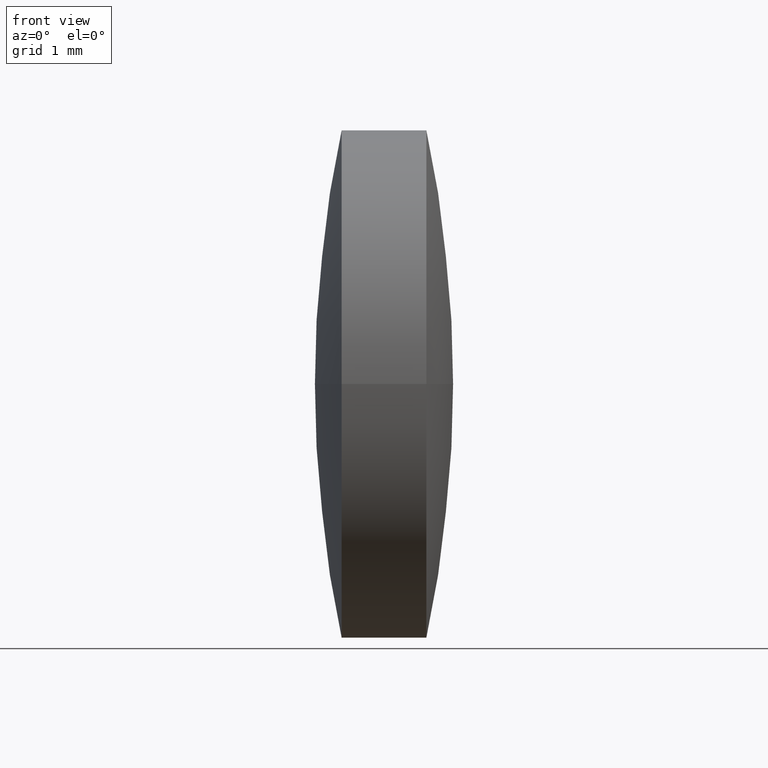
[diagram: clean part render]
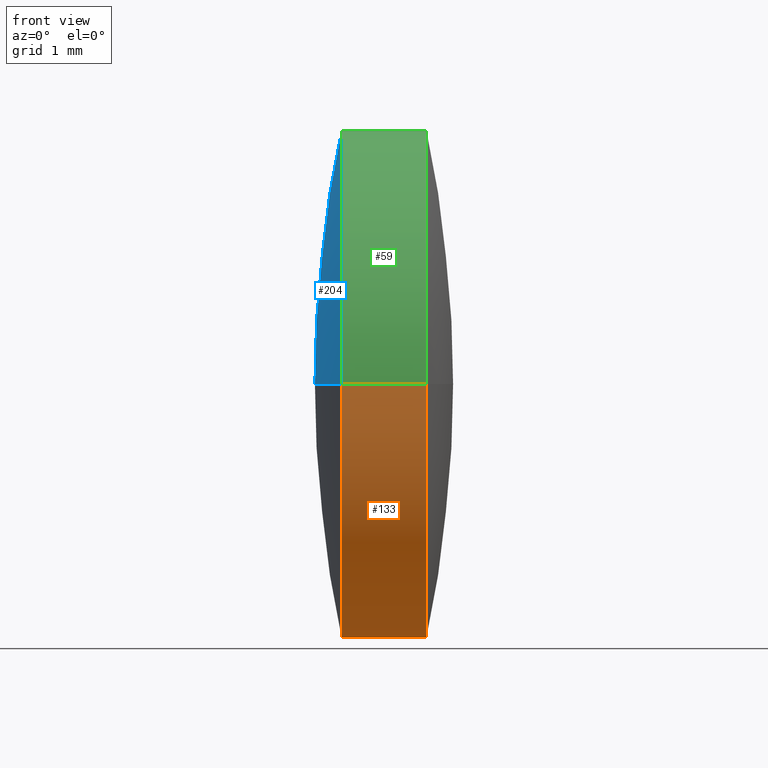
[diagram: same view with three faces highlighted in distinct colors, each labeled with its STEP entity id]
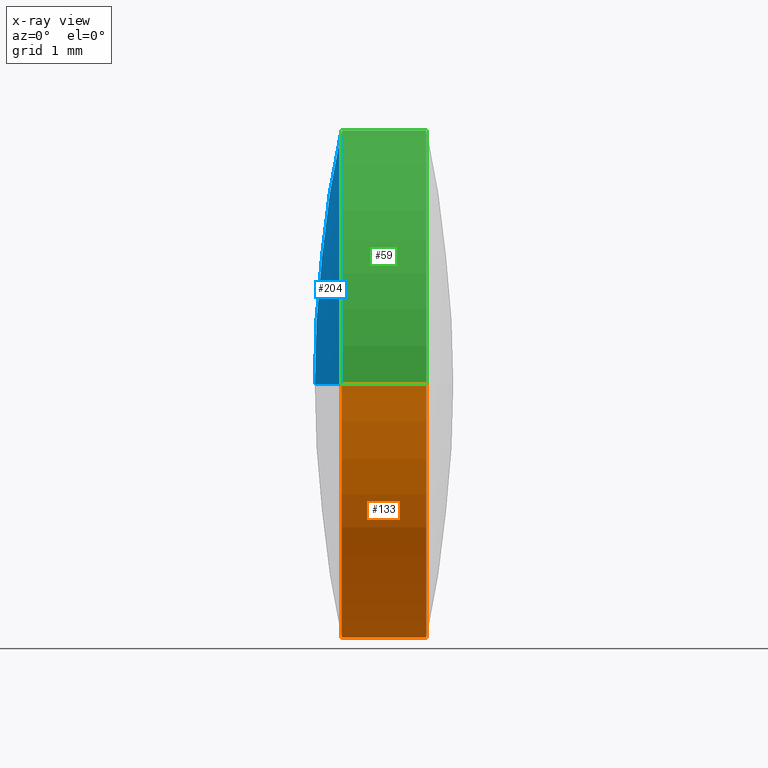
[diagram: x-ray of the same camera — body ghosted, the three highlighted faces saturated]
A machine part, front view with three faces highlighted in distinct colors.
The next image is the same camera in x-ray (body ghosted, the three faces saturated) — at least one of them is partly hidden behind the body in this view.
Their STEP definitions:

[orange] entity #133 — the highlighted cylindrical surface (partial cylindrical patch) has radius 3 mm, axis along (-1, -0, -0).
#10 = EDGE_LOOP ( 'NONE', ( #109, #32, #71, #52 ) ) ;
#14 = FACE_OUTER_BOUND ( 'NONE', #10, .T. ) ;
#20 = CIRCLE ( 'NONE', #131, 2.999999999999997300 ) ;
#23 = AXIS2_PLACEMENT_3D ( 'NONE', #44, #96, #94 ) ;
#29 = AXIS2_PLACEMENT_3D ( 'NONE', #84, #62, #90 ) ;
#32 = ORIENTED_EDGE ( 'NONE', *, *, #50, .T. ) ;
#39 = CARTESIAN_POINT ( 'NONE',  ( 20.92319509412727300, 8.484121186579120200, 0.0000000000000000000 ) ) ;
#44 = CARTESIAN_POINT ( 'NONE',  ( 19.92319566555584100, 11.48412118657908300, 0.0000000000000000000 ) ) ;
#49 = CARTESIAN_POINT ( 'NONE',  ( 20.92319509412725900, 14.48412118657908800, 3.673940397442015500E-016 ) ) ;
#50 = EDGE_CURVE ( 'NONE', #206, #87, #20, .T. ) ;
#52 = ORIENTED_EDGE ( 'NONE', *, *, #230, .F. ) ;
#62 = DIRECTION ( 'NONE',  ( -1.000000000000000000, -2.381146930342230200E-015, -0.0000000000000000000 ) ) ;
#71 = ORIENTED_EDGE ( 'NONE', *, *, #289, .T. ) ;
#84 = CARTESIAN_POINT ( 'NONE',  ( 19.32237368753928700, 11.48412118657908100, 0.0000000000000000000 ) ) ;
#87 = VERTEX_POINT ( 'NONE', #39 ) ;
#88 = CARTESIAN_POINT ( 'NONE',  ( 19.32237368753928000, 14.48412118657908100, 3.673940397442057900E-016 ) ) ;
#90 = DIRECTION ( 'NONE',  ( 2.312964634635743400E-015, -1.000000000000000000, 0.0000000000000000000 ) ) ;
#93 = CARTESIAN_POINT ( 'NONE',  ( 19.32237368753929400, 8.484121186579082900, 0.0000000000000000000 ) ) ;
#94 = DIRECTION ( 'NONE',  ( 2.312964634635743400E-015, -1.000000000000000000, 0.0000000000000000000 ) ) ;
#96 = DIRECTION ( 'NONE',  ( -1.000000000000000000, -2.381146930342230200E-015, -0.0000000000000000000 ) ) ;
#99 = VECTOR ( 'NONE', #171, 1000.000000000000000 ) ;
#105 = EDGE_CURVE ( 'NONE', #206, #301, #249, .T. ) ;
#109 = ORIENTED_EDGE ( 'NONE', *, *, #105, .F. ) ;
#119 = VERTEX_POINT ( 'NONE', #226 ) ;
#122 = CARTESIAN_POINT ( 'NONE',  ( 19.92319566555583400, 14.48412118657908500, 0.0000000000000000000 ) ) ;
#131 = AXIS2_PLACEMENT_3D ( 'NONE', #253, #161, #224 ) ;
#133 = ADVANCED_FACE ( 'NONE', ( #14 ), #205, .T. ) ;
#161 = DIRECTION ( 'NONE',  ( -1.000000000000000000, -2.381146930342230200E-015, -0.0000000000000000000 ) ) ;
#170 = LINE ( 'NONE', #93, #99 ) ;
#171 = DIRECTION ( 'NONE',  ( -1.000000000000000000, -2.381146930342230200E-015, -0.0000000000000000000 ) ) ;
#205 = CYLINDRICAL_SURFACE ( 'NONE', #29, 2.999999999999999100 ) ;
#206 = VERTEX_POINT ( 'NONE', #49 ) ;
#208 = DIRECTION ( 'NONE',  ( -1.000000000000000000, -2.381146930342230200E-015, -0.0000000000000000000 ) ) ;
#215 = CIRCLE ( 'NONE', #23, 2.999999999999999100 ) ;
#224 = DIRECTION ( 'NONE',  ( 2.312964634635745000E-015, -1.000000000000000000, 0.0000000000000000000 ) ) ;
#226 = CARTESIAN_POINT ( 'NONE',  ( 19.92319566555585200, 8.484121186579050900, -3.673940397442060400E-016 ) ) ;
#230 = EDGE_CURVE ( 'NONE', #301, #119, #215, .T. ) ;
#249 = LINE ( 'NONE', #88, #300 ) ;
#253 = CARTESIAN_POINT ( 'NONE',  ( 20.92319509412726600, 11.48412118657908500, 0.0000000000000000000 ) ) ;
#289 = EDGE_CURVE ( 'NONE', #87, #119, #170, .T. ) ;
#300 = VECTOR ( 'NONE', #208, 1000.000000000000000 ) ;
#301 = VERTEX_POINT ( 'NONE', #122 ) ;

[blue] entity #204 — the highlighted spherical surface has radius 14.4434 mm.
#1 = ORIENTED_EDGE ( 'NONE', *, *, #174, .F. ) ;
#22 = DIRECTION ( 'NONE',  ( 0.0000000000000000000, 1.000000000000000000, 1.224646799147353200E-016 ) ) ;
#36 = ORIENTED_EDGE ( 'NONE', *, *, #223, .T. ) ;
#40 = AXIS2_PLACEMENT_3D ( 'NONE', #233, #188, #140 ) ;
#65 = CARTESIAN_POINT ( 'NONE',  ( 34.05161039046465300, 11.48412118657908600, 0.0000000000000000000 ) ) ;
#70 = FACE_OUTER_BOUND ( 'NONE', #250, .T. ) ;
#116 = AXIS2_PLACEMENT_3D ( 'NONE', #65, #209, #189 ) ;
#119 = VERTEX_POINT ( 'NONE', #226 ) ;
#122 = CARTESIAN_POINT ( 'NONE',  ( 19.92319566555583400, 14.48412118657908500, 0.0000000000000000000 ) ) ;
#124 = SPHERICAL_SURFACE ( 'NONE', #207, 14.44341035348024200 ) ;
#125 = DIRECTION ( 'NONE',  ( -2.402096781192418800E-015, 1.000000000000000000, 0.0000000000000000000 ) ) ;
#132 = CIRCLE ( 'NONE', #116, 14.44341035348024200 ) ;
#140 = DIRECTION ( 'NONE',  ( 2.312964634635743400E-015, -1.000000000000000000, 0.0000000000000000000 ) ) ;
#145 = CIRCLE ( 'NONE', #177, 14.44341035348024100 ) ;
#153 = ORIENTED_EDGE ( 'NONE', *, *, #234, .T. ) ;
#166 = DIRECTION ( 'NONE',  ( -2.916063966543157700E-031, 1.224646799147353200E-016, -1.000000000000000000 ) ) ;
#167 = CARTESIAN_POINT ( 'NONE',  ( 19.60820003698440700, 11.48412118657905400, 0.0000000000000000000 ) ) ;
#168 = DIRECTION ( 'NONE',  ( -0.0000000000000000000, 0.0000000000000000000, -1.000000000000000000 ) ) ;
#174 = EDGE_CURVE ( 'NONE', #119, #229, #145, .T. ) ;
#177 = AXIS2_PLACEMENT_3D ( 'NONE', #190, #166, #22 ) ;
#188 = DIRECTION ( 'NONE',  ( -1.000000000000000000, -2.381146930342230200E-015, -0.0000000000000000000 ) ) ;
#189 = DIRECTION ( 'NONE',  ( 1.000000000000000000, 0.0000000000000000000, 0.0000000000000000000 ) ) ;
#190 = CARTESIAN_POINT ( 'NONE',  ( 34.05161039046465300, 11.48412118657908600, 0.0000000000000000000 ) ) ;
#204 = ADVANCED_FACE ( 'NONE', ( #70 ), #124, .T. ) ;
#207 = AXIS2_PLACEMENT_3D ( 'NONE', #288, #168, #125 ) ;
#209 = DIRECTION ( 'NONE',  ( -0.0000000000000000000, 0.0000000000000000000, 1.000000000000000000 ) ) ;
#223 = EDGE_CURVE ( 'NONE', #301, #229, #132, .T. ) ;
#226 = CARTESIAN_POINT ( 'NONE',  ( 19.92319566555585200, 8.484121186579050900, -3.673940397442060400E-016 ) ) ;
#229 = VERTEX_POINT ( 'NONE', #167 ) ;
#233 = CARTESIAN_POINT ( 'NONE',  ( 19.92319566555584100, 11.48412118657908300, 0.0000000000000000000 ) ) ;
#234 = EDGE_CURVE ( 'NONE', #119, #301, #238, .T. ) ;
#238 = CIRCLE ( 'NONE', #40, 2.999999999999999100 ) ;
#250 = EDGE_LOOP ( 'NONE', ( #1, #153, #36 ) ) ;
#288 = CARTESIAN_POINT ( 'NONE',  ( 34.05161039046465300, 11.48412118657908600, 0.0000000000000000000 ) ) ;
#301 = VERTEX_POINT ( 'NONE', #122 ) ;

[green] entity #59 — the highlighted cylindrical surface (partial cylindrical patch) has radius 3 mm, axis along (-1, -0, -0).
#19 = EDGE_CURVE ( 'NONE', #87, #206, #182, .T. ) ;
#39 = CARTESIAN_POINT ( 'NONE',  ( 20.92319509412727300, 8.484121186579120200, 0.0000000000000000000 ) ) ;
#40 = AXIS2_PLACEMENT_3D ( 'NONE', #233, #188, #140 ) ;
#49 = CARTESIAN_POINT ( 'NONE',  ( 20.92319509412725900, 14.48412118657908800, 3.673940397442015500E-016 ) ) ;
#55 = ORIENTED_EDGE ( 'NONE', *, *, #289, .F. ) ;
#59 = ADVANCED_FACE ( 'NONE', ( #219 ), #273, .T. ) ;
#85 = DIRECTION ( 'NONE',  ( -1.000000000000000000, -2.381146930342230200E-015, -0.0000000000000000000 ) ) ;
#87 = VERTEX_POINT ( 'NONE', #39 ) ;
#88 = CARTESIAN_POINT ( 'NONE',  ( 19.32237368753928000, 14.48412118657908100, 3.673940397442057900E-016 ) ) ;
#93 = CARTESIAN_POINT ( 'NONE',  ( 19.32237368753929400, 8.484121186579082900, 0.0000000000000000000 ) ) ;
#99 = VECTOR ( 'NONE', #171, 1000.000000000000000 ) ;
#105 = EDGE_CURVE ( 'NONE', #206, #301, #249, .T. ) ;
#119 = VERTEX_POINT ( 'NONE', #226 ) ;
#122 = CARTESIAN_POINT ( 'NONE',  ( 19.92319566555583400, 14.48412118657908500, 0.0000000000000000000 ) ) ;
#138 = AXIS2_PLACEMENT_3D ( 'NONE', #252, #254, #184 ) ;
#140 = DIRECTION ( 'NONE',  ( 2.312964634635743400E-015, -1.000000000000000000, 0.0000000000000000000 ) ) ;
#160 = ORIENTED_EDGE ( 'NONE', *, *, #19, .T. ) ;
#163 = DIRECTION ( 'NONE',  ( 2.312964634635745000E-015, -1.000000000000000000, 0.0000000000000000000 ) ) ;
#170 = LINE ( 'NONE', #93, #99 ) ;
#171 = DIRECTION ( 'NONE',  ( -1.000000000000000000, -2.381146930342230200E-015, -0.0000000000000000000 ) ) ;
#173 = EDGE_LOOP ( 'NONE', ( #160, #239, #216, #55 ) ) ;
#182 = CIRCLE ( 'NONE', #305, 2.999999999999997300 ) ;
#183 = CARTESIAN_POINT ( 'NONE',  ( 20.92319509412726600, 11.48412118657908500, 0.0000000000000000000 ) ) ;
#184 = DIRECTION ( 'NONE',  ( 2.312964634635743400E-015, -1.000000000000000000, 0.0000000000000000000 ) ) ;
#188 = DIRECTION ( 'NONE',  ( -1.000000000000000000, -2.381146930342230200E-015, -0.0000000000000000000 ) ) ;
#206 = VERTEX_POINT ( 'NONE', #49 ) ;
#208 = DIRECTION ( 'NONE',  ( -1.000000000000000000, -2.381146930342230200E-015, -0.0000000000000000000 ) ) ;
#216 = ORIENTED_EDGE ( 'NONE', *, *, #234, .F. ) ;
#219 = FACE_OUTER_BOUND ( 'NONE', #173, .T. ) ;
#226 = CARTESIAN_POINT ( 'NONE',  ( 19.92319566555585200, 8.484121186579050900, -3.673940397442060400E-016 ) ) ;
#233 = CARTESIAN_POINT ( 'NONE',  ( 19.92319566555584100, 11.48412118657908300, 0.0000000000000000000 ) ) ;
#234 = EDGE_CURVE ( 'NONE', #119, #301, #238, .T. ) ;
#238 = CIRCLE ( 'NONE', #40, 2.999999999999999100 ) ;
#239 = ORIENTED_EDGE ( 'NONE', *, *, #105, .T. ) ;
#249 = LINE ( 'NONE', #88, #300 ) ;
#252 = CARTESIAN_POINT ( 'NONE',  ( 19.32237368753928700, 11.48412118657908100, 0.0000000000000000000 ) ) ;
#254 = DIRECTION ( 'NONE',  ( -1.000000000000000000, -2.381146930342230200E-015, -0.0000000000000000000 ) ) ;
#273 = CYLINDRICAL_SURFACE ( 'NONE', #138, 2.999999999999999100 ) ;
#289 = EDGE_CURVE ( 'NONE', #87, #119, #170, .T. ) ;
#300 = VECTOR ( 'NONE', #208, 1000.000000000000000 ) ;
#301 = VERTEX_POINT ( 'NONE', #122 ) ;
#305 = AXIS2_PLACEMENT_3D ( 'NONE', #183, #85, #163 ) ;